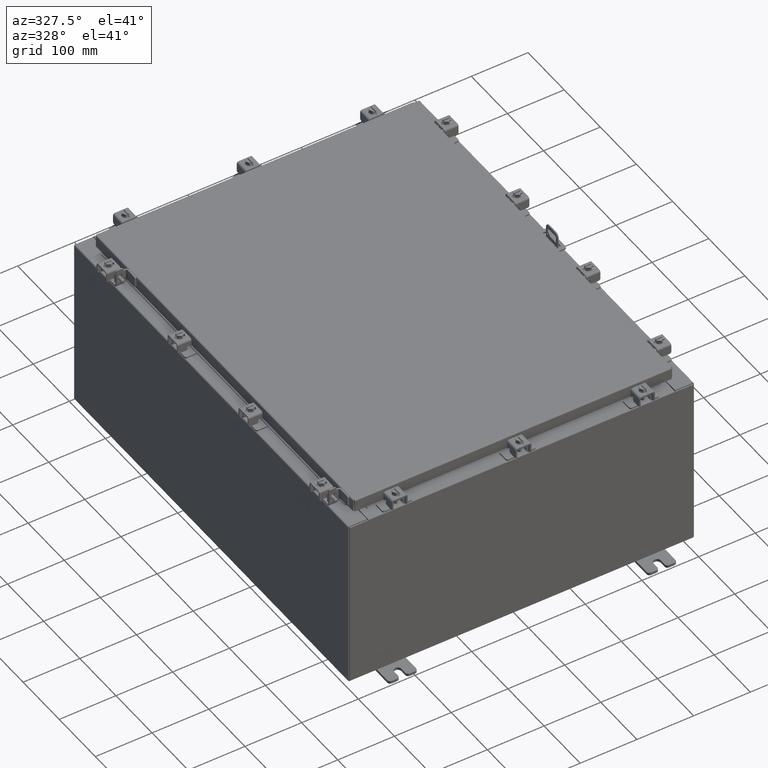
[diagram: clean part render]
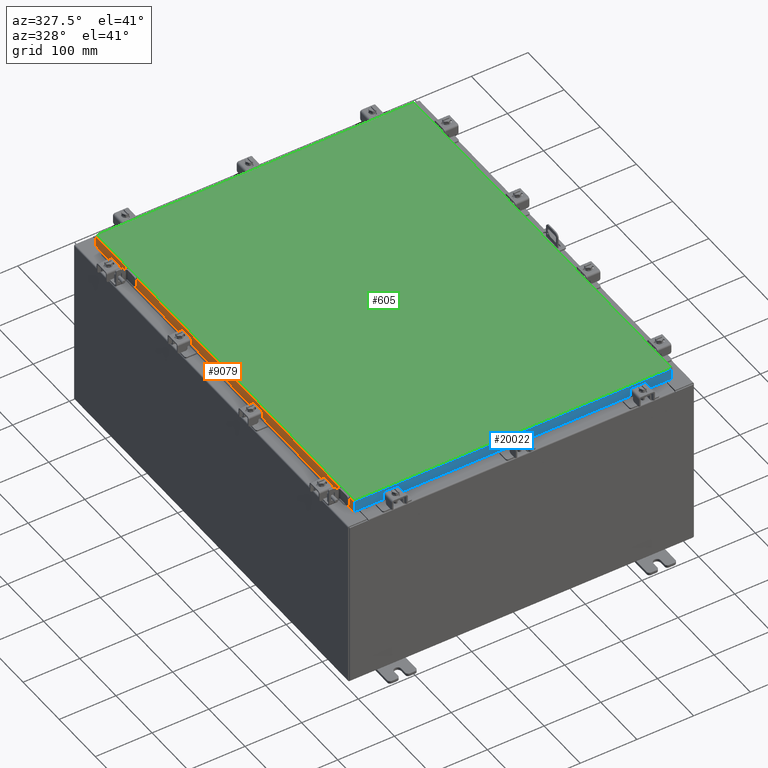
[diagram: same view with three faces highlighted in distinct colors, each labeled with its STEP entity id]
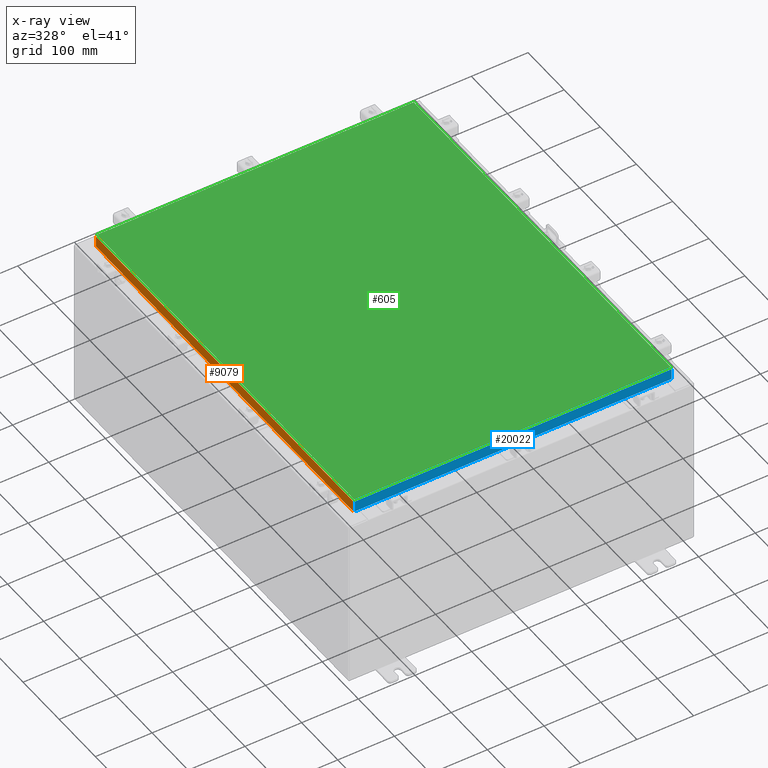
[diagram: x-ray of the same camera — body ghosted, the three highlighted faces saturated]
A machine part, auxiliary view with three faces highlighted in distinct colors.
The next image is the same camera in x-ray (body ghosted, the three faces saturated) — at least one of them is partly hidden behind the body in this view.
Their STEP definitions:

[orange] entity #9079 — the highlighted planar face has unit normal (1, 0, -0).
#83 = LINE ( 'NONE', #10223, #9560 ) ;
#191 = EDGE_CURVE ( 'NONE', #18406, #19699, #8345, .T. ) ;
#660 = EDGE_CURVE ( 'NONE', #3180, #1584, #9469, .T. ) ;
#783 = DIRECTION ( 'NONE',  ( -2.818880942772360100E-015, 6.982962677686265900E-015, -1.000000000000000000 ) ) ;
#1342 = LINE ( 'NONE', #14980, #14471 ) ;
#1584 = VERTEX_POINT ( 'NONE', #12977 ) ;
#1674 = ORIENTED_EDGE ( 'NONE', *, *, #660, .F. ) ;
#2061 = PLANE ( 'NONE',  #7108 ) ;
#3152 = CARTESIAN_POINT ( 'NONE',  ( -11.07799999999999900, 14.00515786437626900, -0.08770000000000007000 ) ) ;
#3180 = VERTEX_POINT ( 'NONE', #10765 ) ;
#3459 = EDGE_CURVE ( 'NONE', #21161, #19699, #1342, .T. ) ;
#3621 = VECTOR ( 'NONE', #16953, 39.37007874015748100 ) ;
#5619 = DIRECTION ( 'NONE',  ( -2.818880942772360100E-015, 0.0000000000000000000, -1.000000000000000000 ) ) ;
#6923 = DIRECTION ( 'NONE',  ( 3.414908049476327800E-031, -1.000000000000000000, -9.308245715024052500E-046 ) ) ;
#7108 = AXIS2_PLACEMENT_3D ( 'NONE', #9139, #16327, #5619 ) ;
#7231 = DIRECTION ( 'NONE',  ( -0.0000000000000000000, 1.000000000000000000, -0.0000000000000000000 ) ) ;
#8004 = ORIENTED_EDGE ( 'NONE', *, *, #20694, .F. ) ;
#8345 = LINE ( 'NONE', #16567, #3621 ) ;
#9079 = ADVANCED_FACE ( 'NONE', ( #20905 ), #2061, .F. ) ;
#9139 = CARTESIAN_POINT ( 'NONE',  ( -11.07799999999999900, -3.783035137209876100E-030, 3.148837674004379000E-014 ) ) ;
#9469 = LINE ( 'NONE', #13692, #14250 ) ;
#9560 = VECTOR ( 'NONE', #22767, 39.37007874015748100 ) ;
#10223 = CARTESIAN_POINT ( 'NONE',  ( -11.07800000000000300, -14.09399999999999600, -0.8499999999999996400 ) ) ;
#10351 = VECTOR ( 'NONE', #7231, 39.37007874015748100 ) ;
#10441 = ORIENTED_EDGE ( 'NONE', *, *, #11596, .F. ) ;
#10765 = CARTESIAN_POINT ( 'NONE',  ( -11.07799999999999900, -14.00515786437626400, -0.08770000000000007000 ) ) ;
#11253 = CARTESIAN_POINT ( 'NONE',  ( -11.07799999999999600, 13.25515786437627400, -0.8500000000000012000 ) ) ;
#11596 = EDGE_CURVE ( 'NONE', #1584, #19618, #83, .T. ) ;
#12977 = CARTESIAN_POINT ( 'NONE',  ( -11.07800000000000300, -14.00515786437626200, -0.8499999999999996400 ) ) ;
#13248 = CARTESIAN_POINT ( 'NONE',  ( -11.07799999999999600, -13.25515786437625600, -0.8500000000000012000 ) ) ;
#13692 = CARTESIAN_POINT ( 'NONE',  ( -11.07799999999999900, -14.00515786437626500, -0.07469999999999978000 ) ) ;
#14250 = VECTOR ( 'NONE', #20373, 39.37007874015748100 ) ;
#14471 = VECTOR ( 'NONE', #783, 39.37007874015748100 ) ;
#14980 = CARTESIAN_POINT ( 'NONE',  ( -11.07799999999999900, 14.00515786437626900, 1.292858714020875700E-013 ) ) ;
#15686 = LINE ( 'NONE', #16147, #10351 ) ;
#16147 = CARTESIAN_POINT ( 'NONE',  ( -11.07799999999999600, -13.25515786437626200, -0.8500000000000012000 ) ) ;
#16327 = DIRECTION ( 'NONE',  ( 1.000000000000000000, 3.414908049476327800E-031, -2.818880942772360100E-015 ) ) ;
#16567 = CARTESIAN_POINT ( 'NONE',  ( -11.07800000000000300, -14.09399999999999600, -0.8499999999999996400 ) ) ;
#16763 = EDGE_LOOP ( 'NONE', ( #23157, #22847, #23126, #8004, #10441, #1674 ) ) ;
#16953 = DIRECTION ( 'NONE',  ( -0.0000000000000000000, 1.000000000000000000, 1.211441035930299800E-016 ) ) ;
#17648 = CARTESIAN_POINT ( 'NONE',  ( -11.07799999999999900, -14.09399999999999600, -0.08770000000000007000 ) ) ;
#17933 = VECTOR ( 'NONE', #6923, 39.37007874015748100 ) ;
#18406 = VERTEX_POINT ( 'NONE', #11253 ) ;
#18610 = CARTESIAN_POINT ( 'NONE',  ( -11.07800000000000300, 14.00515786437627400, -0.8499999999999963100 ) ) ;
#19618 = VERTEX_POINT ( 'NONE', #13248 ) ;
#19699 = VERTEX_POINT ( 'NONE', #18610 ) ;
#20373 = DIRECTION ( 'NONE',  ( -2.818880942772360100E-015, 6.982962677686265900E-015, -1.000000000000000000 ) ) ;
#20557 = EDGE_CURVE ( 'NONE', #21161, #3180, #22695, .T. ) ;
#20694 = EDGE_CURVE ( 'NONE', #19618, #18406, #15686, .T. ) ;
#20905 = FACE_OUTER_BOUND ( 'NONE', #16763, .T. ) ;
#21161 = VERTEX_POINT ( 'NONE', #3152 ) ;
#22695 = LINE ( 'NONE', #17648, #17933 ) ;
#22767 = DIRECTION ( 'NONE',  ( -0.0000000000000000000, 1.000000000000000000, 1.211441035930299800E-016 ) ) ;
#22847 = ORIENTED_EDGE ( 'NONE', *, *, #3459, .T. ) ;
#23126 = ORIENTED_EDGE ( 'NONE', *, *, #191, .F. ) ;
#23157 = ORIENTED_EDGE ( 'NONE', *, *, #20557, .F. ) ;

[blue] entity #20022 — the highlighted planar face has unit normal (0, 1, -0).
#1267 = CARTESIAN_POINT ( 'NONE',  ( -10.98915786437626700, -14.09399999999999900, -0.08770000000000224800 ) ) ;
#1327 = CARTESIAN_POINT ( 'NONE',  ( 11.07799999999999800, -14.09400000000000300, -0.8499999999999996400 ) ) ;
#1414 = DIRECTION ( 'NONE',  ( 1.000000000000000000, -9.864047639155999200E-017, -9.196021172131615100E-046 ) ) ;
#1810 = CARTESIAN_POINT ( 'NONE',  ( 10.98915786437624400, -14.09400000000000100, -0.08770000000000224800 ) ) ;
#1987 = CARTESIAN_POINT ( 'NONE',  ( 11.07799999999999800, -14.09400000000000300, -0.8499999999999996400 ) ) ;
#2300 = CARTESIAN_POINT ( 'NONE',  ( 10.98915786437626900, -14.09400000000000300, -0.8499999999999996400 ) ) ;
#4129 = ORIENTED_EDGE ( 'NONE', *, *, #5664, .F. ) ;
#4881 = CARTESIAN_POINT ( 'NONE',  ( 11.07799999999999900, -14.09400000000000100, -0.08770000000000224800 ) ) ;
#5131 = PLANE ( 'NONE',  #6279 ) ;
#5460 = LINE ( 'NONE', #6593, #22828 ) ;
#5631 = CARTESIAN_POINT ( 'NONE',  ( -10.98915786437626900, -14.09400000000000100, -0.8499999999999969800 ) ) ;
#5664 = EDGE_CURVE ( 'NONE', #18205, #21455, #18009, .T. ) ;
#5795 = EDGE_CURVE ( 'NONE', #11659, #9429, #6794, .T. ) ;
#5948 = LINE ( 'NONE', #4881, #14932 ) ;
#6279 = AXIS2_PLACEMENT_3D ( 'NONE', #12194, #17662, #6942 ) ;
#6593 = CARTESIAN_POINT ( 'NONE',  ( -10.98915786437626900, -14.09399999999999900, 3.999012166344522900E-014 ) ) ;
#6759 = ORIENTED_EDGE ( 'NONE', *, *, #11057, .F. ) ;
#6794 = LINE ( 'NONE', #1987, #15765 ) ;
#6942 = DIRECTION ( 'NONE',  ( 0.0000000000000000000, 2.818880942772360500E-015, 1.000000000000000000 ) ) ;
#8311 = DIRECTION ( 'NONE',  ( 0.0000000000000000000, -2.818880942772360500E-015, -1.000000000000000000 ) ) ;
#8740 = CARTESIAN_POINT ( 'NONE',  ( 10.98915786437626900, -14.09400000000000100, -0.07469999999999978000 ) ) ;
#8977 = FACE_OUTER_BOUND ( 'NONE', #22032, .T. ) ;
#9134 = DIRECTION ( 'NONE',  ( -1.000000000000000000, 9.864047639156033700E-017, 1.233005954894504400E-016 ) ) ;
#9363 = LINE ( 'NONE', #1327, #13033 ) ;
#9429 = VERTEX_POINT ( 'NONE', #5631 ) ;
#9584 = LINE ( 'NONE', #21224, #13793 ) ;
#10460 = EDGE_CURVE ( 'NONE', #23146, #18205, #5948, .T. ) ;
#11057 = EDGE_CURVE ( 'NONE', #13889, #11659, #9584, .T. ) ;
#11341 = ORIENTED_EDGE ( 'NONE', *, *, #10460, .F. ) ;
#11659 = VERTEX_POINT ( 'NONE', #17592 ) ;
#11691 = ORIENTED_EDGE ( 'NONE', *, *, #22390, .F. ) ;
#12194 = CARTESIAN_POINT ( 'NONE',  ( -1.390238874262646300E-015, -14.09399999999999900, 3.999012166344522900E-014 ) ) ;
#12330 = DIRECTION ( 'NONE',  ( -1.000000000000000000, 0.0000000000000000000, 0.0000000000000000000 ) ) ;
#13033 = VECTOR ( 'NONE', #22737, 39.37007874015748100 ) ;
#13793 = VECTOR ( 'NONE', #12330, 39.37007874015748100 ) ;
#13889 = VERTEX_POINT ( 'NONE', #20764 ) ;
#14932 = VECTOR ( 'NONE', #1414, 39.37007874015748100 ) ;
#15765 = VECTOR ( 'NONE', #9134, 39.37007874015748100 ) ;
#15848 = EDGE_CURVE ( 'NONE', #23146, #9429, #5460, .T. ) ;
#17592 = CARTESIAN_POINT ( 'NONE',  ( -10.23915786437626900, -14.09399999999999900, -0.8500000000000012000 ) ) ;
#17662 = DIRECTION ( 'NONE',  ( 9.864047639155998000E-017, 1.000000000000000000, -2.818880942772360500E-015 ) ) ;
#18009 = LINE ( 'NONE', #8740, #22232 ) ;
#18205 = VERTEX_POINT ( 'NONE', #1810 ) ;
#18497 = ORIENTED_EDGE ( 'NONE', *, *, #15848, .T. ) ;
#20022 = ADVANCED_FACE ( 'NONE', ( #8977 ), #5131, .F. ) ;
#20080 = ORIENTED_EDGE ( 'NONE', *, *, #5795, .F. ) ;
#20764 = CARTESIAN_POINT ( 'NONE',  ( 10.23915786437626700, -14.09399999999999900, -0.8500000000000012000 ) ) ;
#21224 = CARTESIAN_POINT ( 'NONE',  ( 10.23915786437626900, -14.09399999999999900, -0.8500000000000012000 ) ) ;
#21455 = VERTEX_POINT ( 'NONE', #2300 ) ;
#22032 = EDGE_LOOP ( 'NONE', ( #11341, #18497, #20080, #6759, #11691, #4129 ) ) ;
#22232 = VECTOR ( 'NONE', #23002, 39.37007874015748100 ) ;
#22390 = EDGE_CURVE ( 'NONE', #21455, #13889, #9363, .T. ) ;
#22737 = DIRECTION ( 'NONE',  ( -1.000000000000000000, 9.864047639156033700E-017, 1.233005954894504400E-016 ) ) ;
#22828 = VECTOR ( 'NONE', #8311, 39.37007874015748100 ) ;
#23002 = DIRECTION ( 'NONE',  ( 0.0000000000000000000, -2.818880942772360500E-015, -1.000000000000000000 ) ) ;
#23146 = VERTEX_POINT ( 'NONE', #1267 ) ;

[green] entity #605 — the highlighted planar face has unit normal (0, 0, -1).
#12 = LINE ( 'NONE', #11269, #17895 ) ;
#605 = ADVANCED_FACE ( 'NONE', ( #19575 ), #17177, .F. ) ;
#971 = EDGE_CURVE ( 'NONE', #11093, #20611, #12, .T. ) ;
#2305 = ORIENTED_EDGE ( 'NONE', *, *, #11942, .T. ) ;
#2694 = EDGE_LOOP ( 'NONE', ( #16668, #2305, #7729, #18109 ) ) ;
#2943 = LINE ( 'NONE', #21152, #11894 ) ;
#3404 = LINE ( 'NONE', #4292, #17669 ) ;
#4292 = CARTESIAN_POINT ( 'NONE',  ( 10.99030000000000000, -14.00629999999999800, -2.048885995248197400E-016 ) ) ;
#7729 = ORIENTED_EDGE ( 'NONE', *, *, #971, .T. ) ;
#8335 = DIRECTION ( 'NONE',  ( 0.0000000000000000000, 0.0000000000000000000, -1.000000000000000000 ) ) ;
#8761 = CARTESIAN_POINT ( 'NONE',  ( 10.99030000000000000, 14.00629999999999800, -2.048885995248197400E-016 ) ) ;
#8818 = VERTEX_POINT ( 'NONE', #21045 ) ;
#10822 = EDGE_CURVE ( 'NONE', #8818, #21743, #18265, .T. ) ;
#11093 = VERTEX_POINT ( 'NONE', #8761 ) ;
#11269 = CARTESIAN_POINT ( 'NONE',  ( 10.99030000000000000, 14.00629999999999800, -2.048885995248197400E-016 ) ) ;
#11431 = DIRECTION ( 'NONE',  ( 0.0000000000000000000, 1.000000000000000000, 0.0000000000000000000 ) ) ;
#11485 = DIRECTION ( 'NONE',  ( -1.000000000000000000, -0.0000000000000000000, -0.0000000000000000000 ) ) ;
#11894 = VECTOR ( 'NONE', #15759, 39.37007874015748100 ) ;
#11942 = EDGE_CURVE ( 'NONE', #21743, #11093, #3404, .T. ) ;
#13775 = CARTESIAN_POINT ( 'NONE',  ( 0.0000000000000000000, 0.0000000000000000000, 0.0000000000000000000 ) ) ;
#14644 = AXIS2_PLACEMENT_3D ( 'NONE', #13775, #8335, #20441 ) ;
#15759 = DIRECTION ( 'NONE',  ( 0.0000000000000000000, -1.000000000000000000, 0.0000000000000000000 ) ) ;
#16668 = ORIENTED_EDGE ( 'NONE', *, *, #10822, .T. ) ;
#17001 = CARTESIAN_POINT ( 'NONE',  ( -10.99029999999999600, -14.00629999999999800, -2.219626494852214000E-016 ) ) ;
#17177 = PLANE ( 'NONE',  #14644 ) ;
#17669 = VECTOR ( 'NONE', #11431, 39.37007874015748100 ) ;
#17895 = VECTOR ( 'NONE', #11485, 39.37007874015748100 ) ;
#18109 = ORIENTED_EDGE ( 'NONE', *, *, #22441, .T. ) ;
#18265 = LINE ( 'NONE', #17001, #23034 ) ;
#18826 = DIRECTION ( 'NONE',  ( 1.000000000000000000, -0.0000000000000000000, -0.0000000000000000000 ) ) ;
#19575 = FACE_OUTER_BOUND ( 'NONE', #2694, .T. ) ;
#20441 = DIRECTION ( 'NONE',  ( -1.000000000000000000, 0.0000000000000000000, -0.0000000000000000000 ) ) ;
#20611 = VERTEX_POINT ( 'NONE', #23119 ) ;
#21045 = CARTESIAN_POINT ( 'NONE',  ( -10.99029999999999800, -14.00629999999999800, -2.048885995248197400E-016 ) ) ;
#21152 = CARTESIAN_POINT ( 'NONE',  ( -10.99030000000000000, 14.00630000000000100, -2.048885995248197400E-016 ) ) ;
#21743 = VERTEX_POINT ( 'NONE', #22694 ) ;
#22441 = EDGE_CURVE ( 'NONE', #20611, #8818, #2943, .T. ) ;
#22694 = CARTESIAN_POINT ( 'NONE',  ( 10.99030000000000000, -14.00629999999999800, -2.048885995248197400E-016 ) ) ;
#23034 = VECTOR ( 'NONE', #18826, 39.37007874015748100 ) ;
#23119 = CARTESIAN_POINT ( 'NONE',  ( -10.99030000000000000, 14.00630000000000100, -2.048885995248197400E-016 ) ) ;